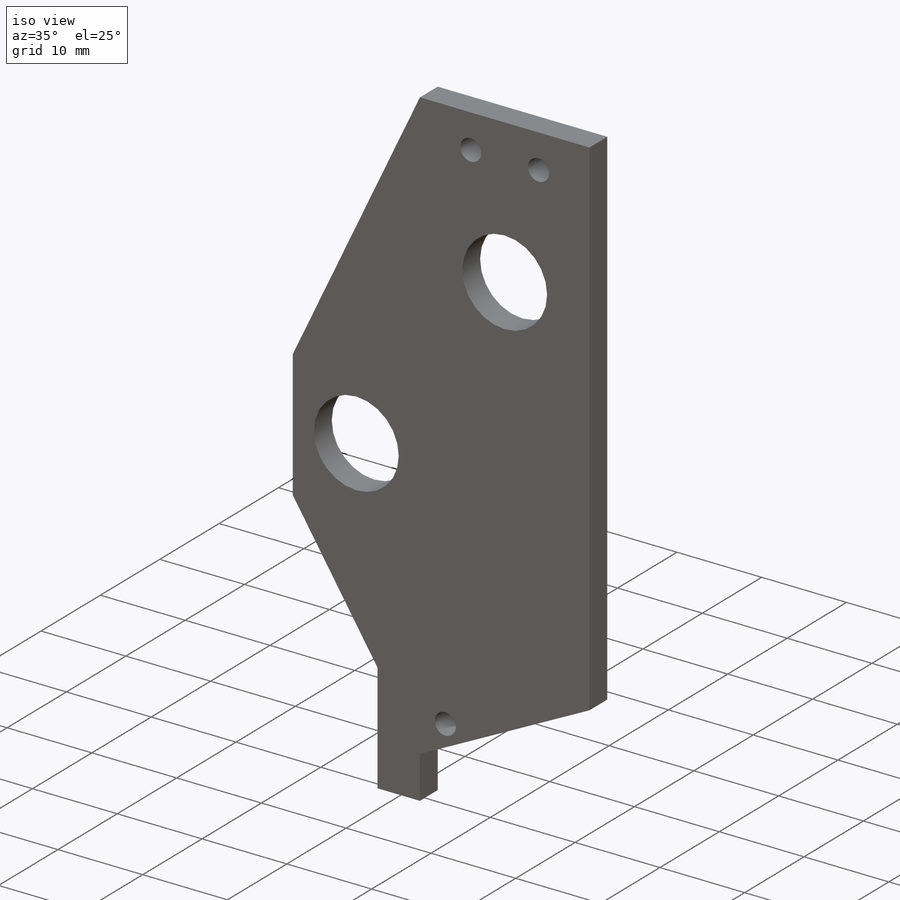
[diagram: iso view]
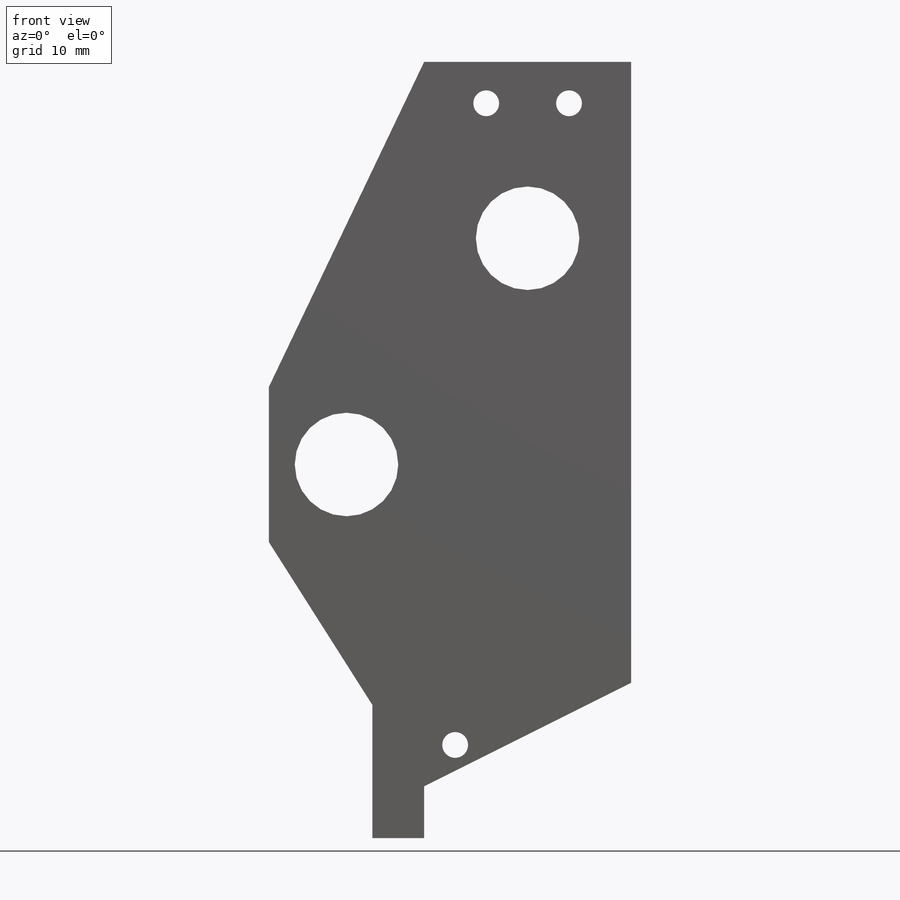
[diagram: front view]
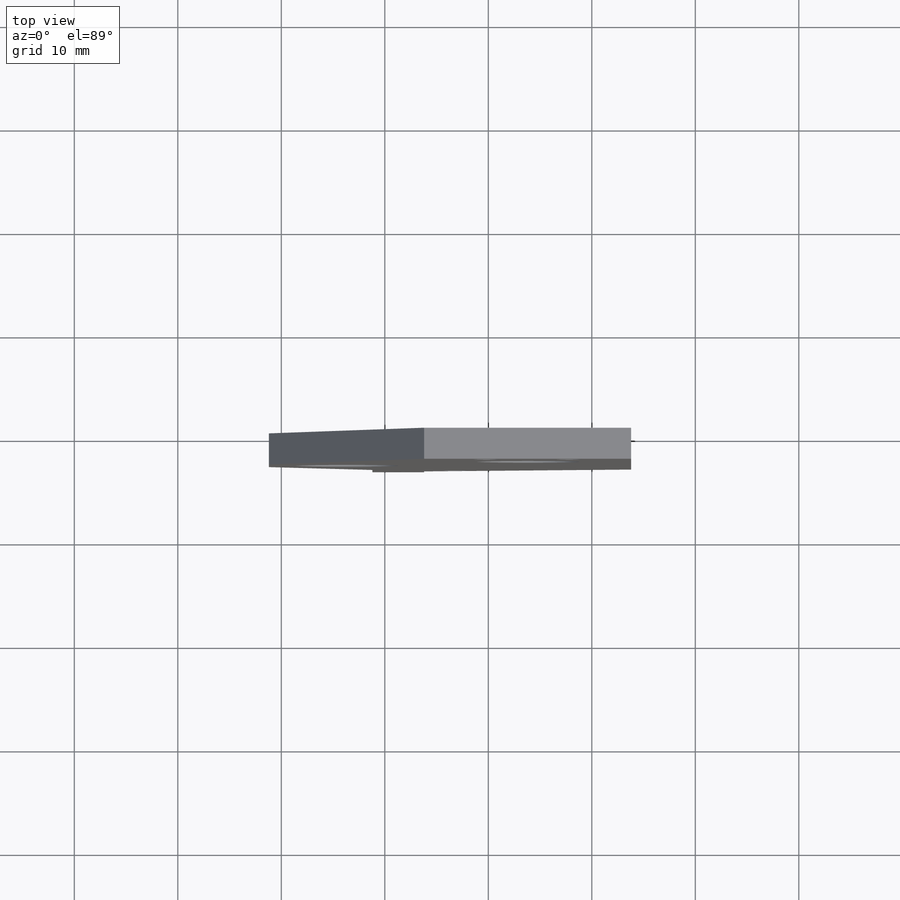
[diagram: top view]
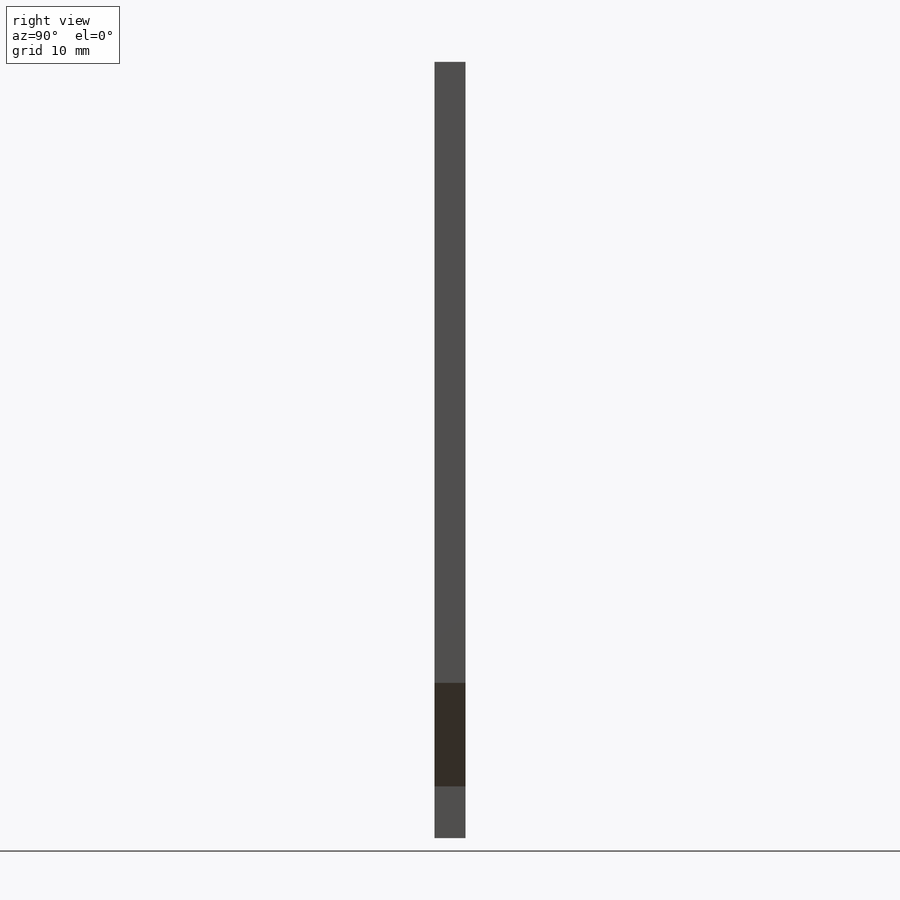
[diagram: right view]
SOLIDWORKS PART (.sldprt)
format: sldprt  version: not decoded by parser v0  size: 318,464 bytes
history: native  units: mm
features: sketch x5, extrude x4, material x1, cut_extrude x1 (+11 scaffold rows collapsed)
feature tree (22):
  scaffold x11  (default folders/planes/origin — collapsed)
  material  "Material <not specified>"
  sketch  "Sketch1"  dims[D1=70.0mm D2=20.0mm]
  extrude  "Boss-Extrude1"  Depth=3mm
  sketch  "Sketch2"  dims[D1=23.6mm D2=15.0mm D3=15.0mm]
  extrude  "Boss-Extrude2"  Depth=3mm
  sketch  "Sketch3"
  extrude  "Boss-Extrude3"  Depth=3mm
  sketch  "Sketch6"
  extrude  "Boss-Extrude4"  Depth=3mm
  sketch  "Sketch7"  dims[c1.D1=~3.715865mm c1.D3=~1.736979mm c1.D5=~5.515382mm c1.D7=~1.893415mm c2.D1=7.5mm c2.D2=7.5mm c2.D3=3.0mm c2.D4=4.0mm c2.D5=10.0mm c2.D6=28.0mm c2.D7=6.0mm c2.D8=6.0mm c2.D9=4.0mm c2.D10=4.0mm]
  cut_extrude  "Cut-Extrude1"  [1 undecoded]
decode coverage: 7 of 10 modeling features carry decoded parameters
note: ~ marks probable driven/reference dimensions
note: 1 parameter value undecoded
note: suppression state not decoded; provenance and decode notes live in map.json
